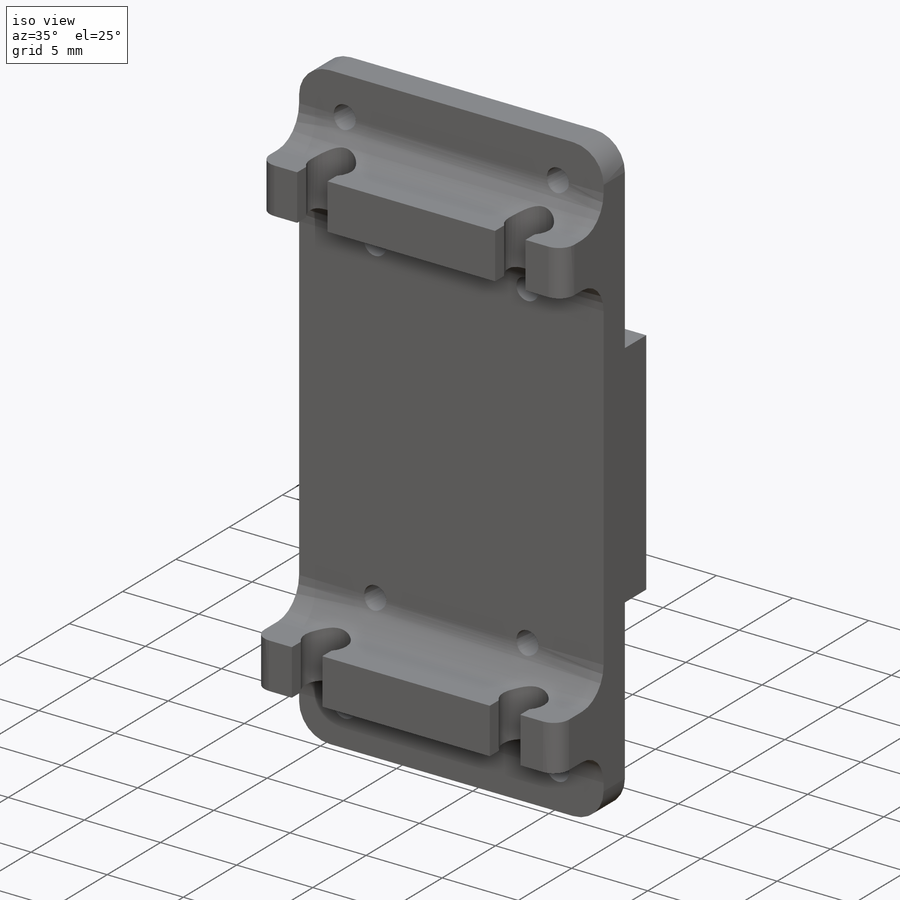
[diagram: iso view]
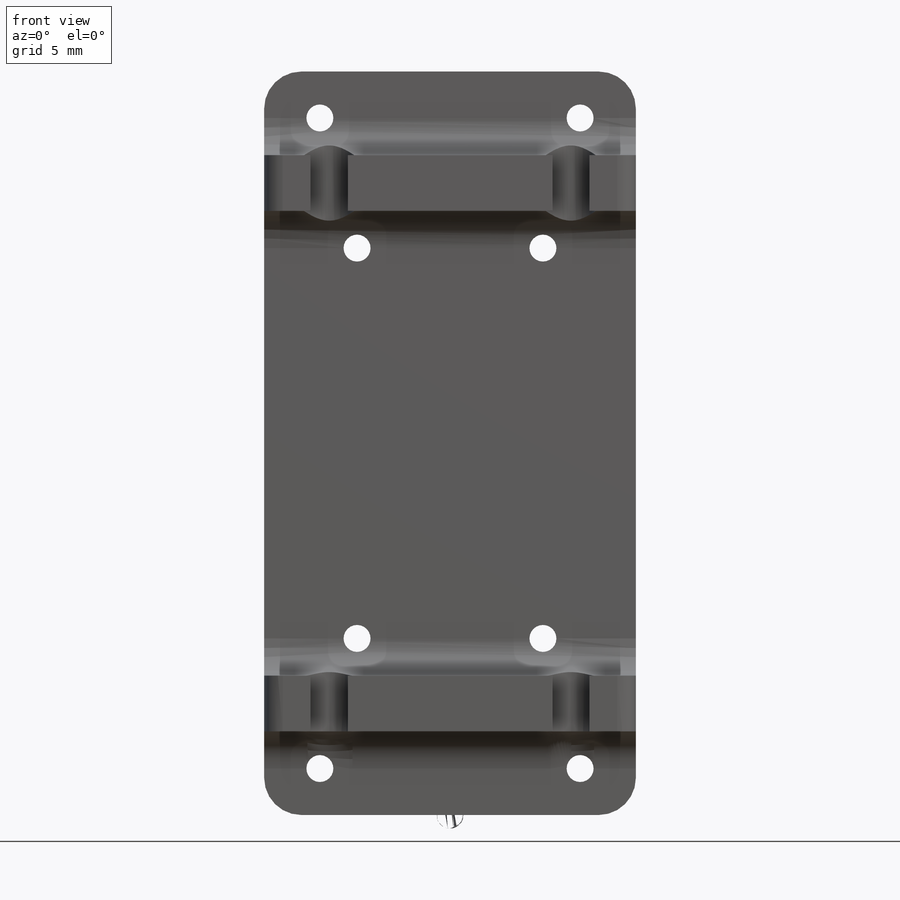
[diagram: front view]
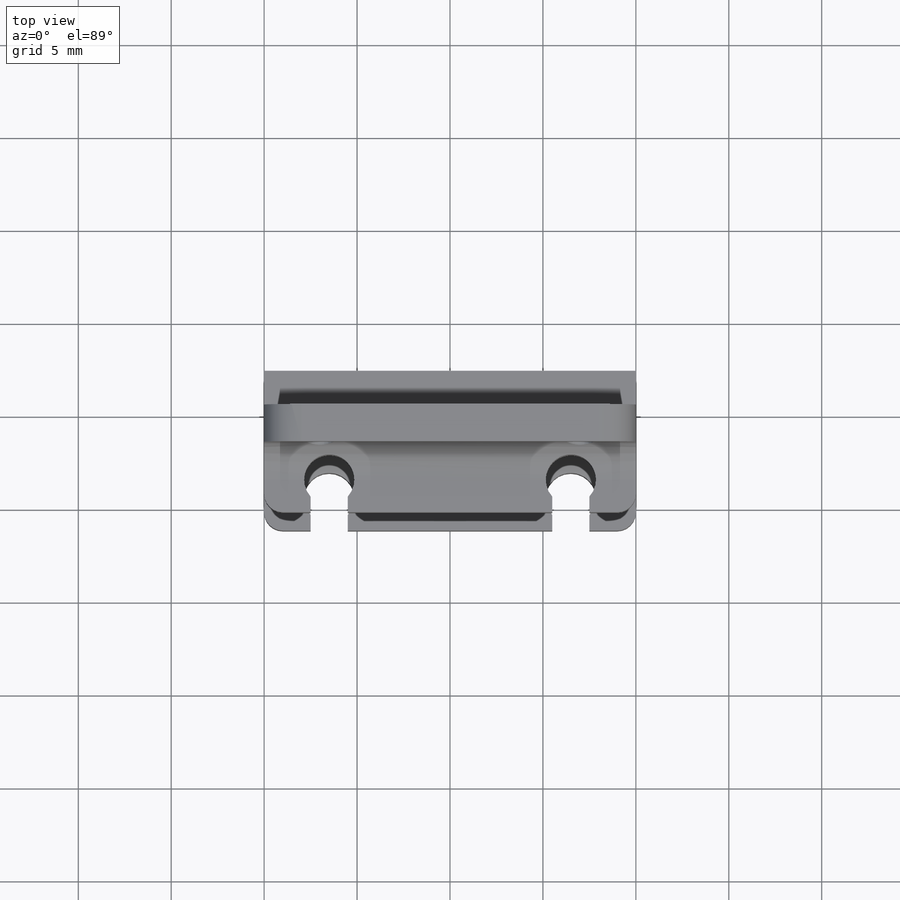
[diagram: top view]
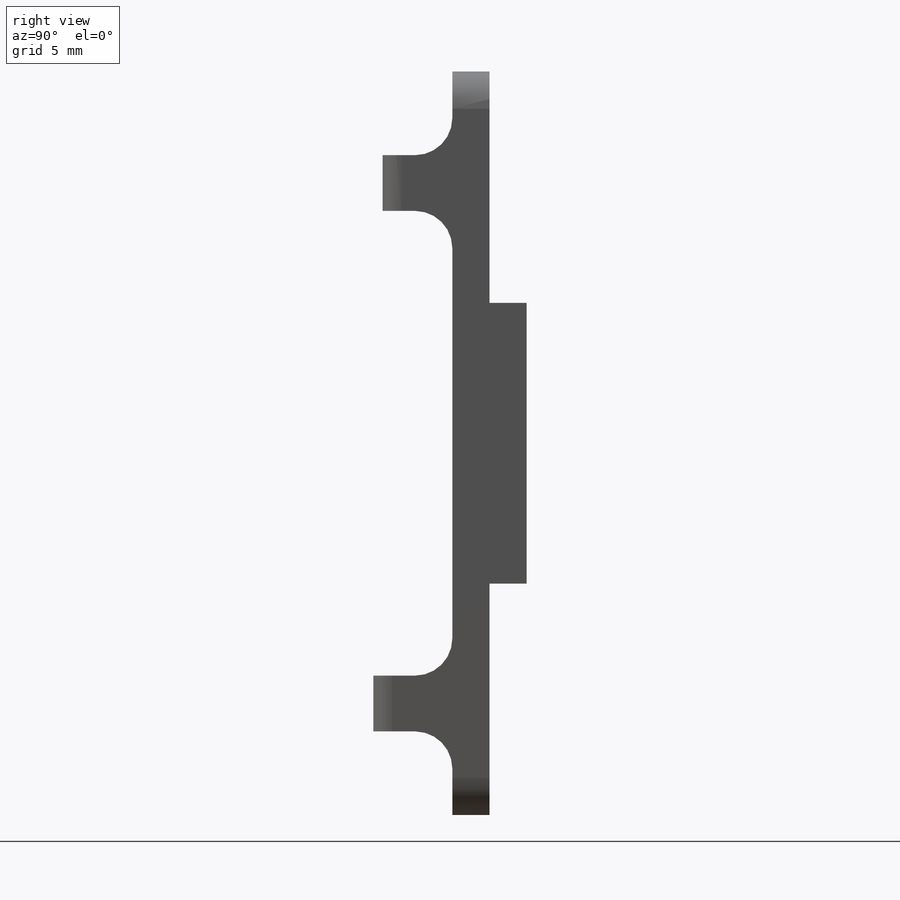
[diagram: right view]
SOLIDWORKS PART (.sldprt)
format: sldprt  version: not decoded by parser v0  size: 425,472 bytes
history: native  units: mm
features: sketch x6, extrude x4, cut_extrude x2, material x1, fillet x1 + 1 further entry (+17 scaffold rows collapsed; 3 parser-record rows omitted)
feature tree (35):
  scaffold x17  (default folders/planes/origin — collapsed)
  material  "ABS"
  "RobotHandParameters"
  parser-record x3  (decoder bookkeeping rows leaked as tree rows — omitted from the tree; the rows remain in map.json)
  sketch  "Sketch1"  dims[c1.D3=1.45mm c1.D10=1.5mm c1.D1=43.2mm c1.D2=10.0mm c1.D4=3.0mm c1.D5=2.5mm c1.D6=5.0mm c1.D7=9.5mm c1.D8=18.0mm c1.D9=6.75mm c2.D1=10.0mm c2.D2=20.0mm c2.D5=2.5mm c2.D7=9.5mm]
  extrude  "Proximal"  Depth=2mm
  sketch  "Sketch2"  dims[D1=3.0mm D2=4.5mm]
  extrude  "Tube Plate 1"  Depth=4.25mm
  sketch  "Sketch3"  dims[c1.D1=2.7mm c1.D2=5.25mm c1.D3=6.25mm c1.D4=2.0mm c2.D3=3.5mm c2.D2=1.75mm]
  cut_extrude  "Tube Plate 2"  [1 undecoded]
  sketch  "Sketch4"  dims[D1=3.0mm D2=4.5mm]
  extrude  "Tube Plate Distal 1"  Depth=3.75mm
  sketch  "Sketch6"  dims[D1=2.7mm D2=3.5mm D3=1.75mm D4=2.0mm]
  cut_extrude  "Tube Plate Distal 2"  [1 undecoded]
  sketch  "Sketch7"  dims[D1=7.55mm D2=7.55mm]
  extrude  "Proximal Support"  Depth=2mm
  fillet  "Proximal Contouring"  Radius=2mm
decode coverage: 11 of 13 modeling features carry decoded parameters; 1 rows unclassified (native names shown)
note: 2 parameter values undecoded
note: suppression state not decoded; provenance and decode notes live in map.json
